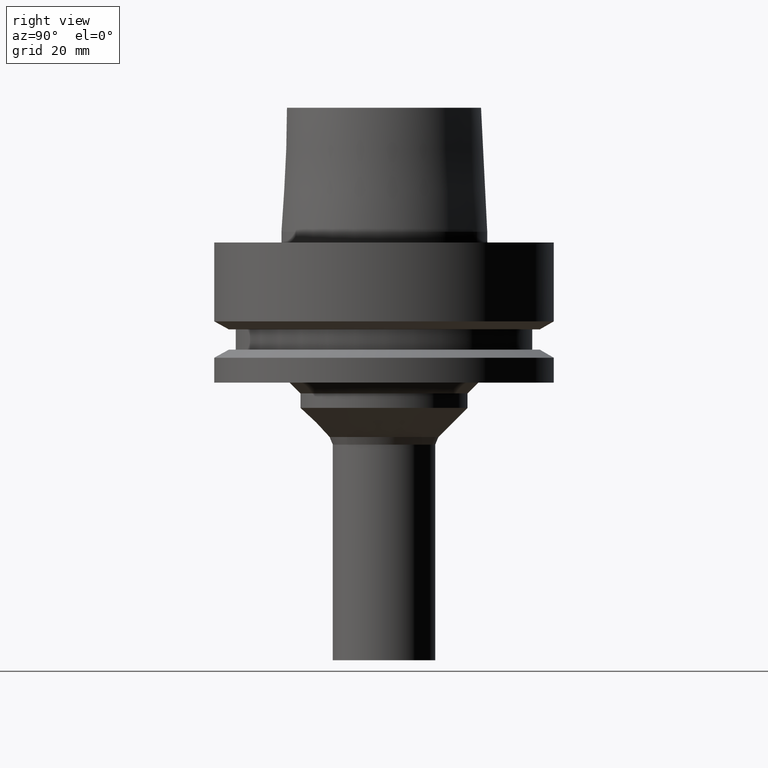
[diagram: clean part render]
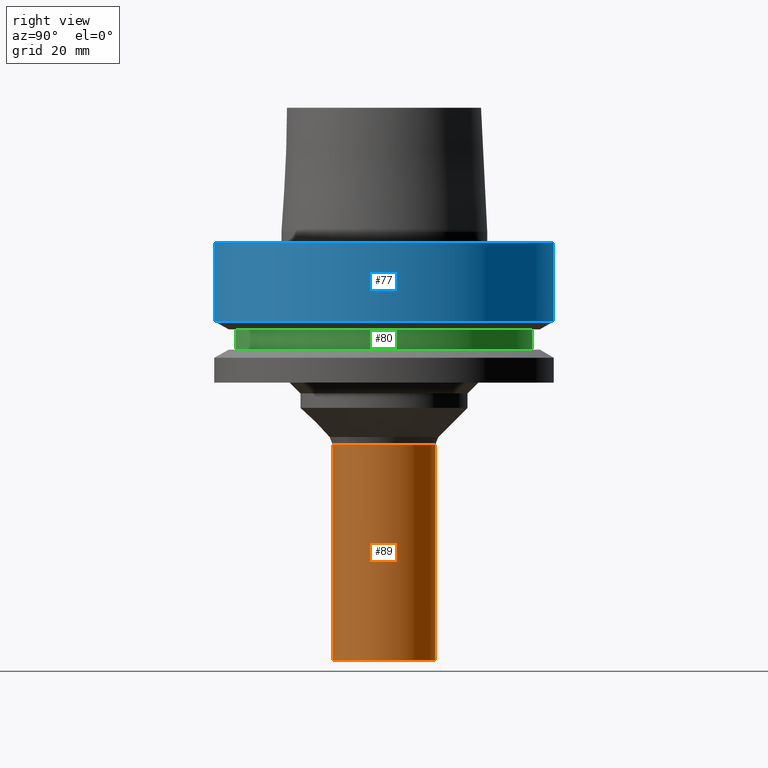
[diagram: same view with three faces highlighted in distinct colors, each labeled with its STEP entity id]
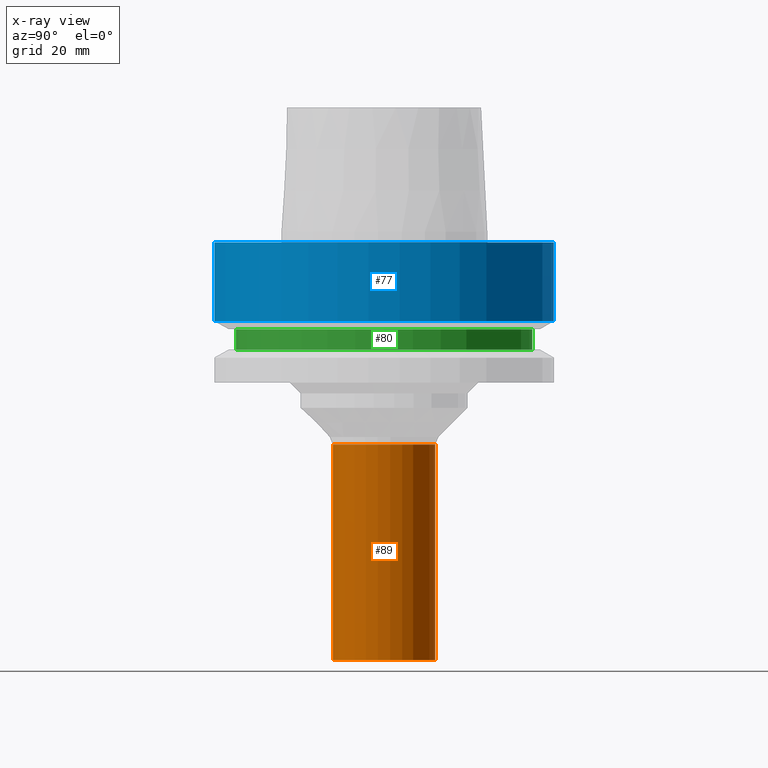
[diagram: x-ray of the same camera — body ghosted, the three highlighted faces saturated]
A machine part, right view with three faces highlighted in distinct colors.
The next image is the same camera in x-ray (body ghosted, the three faces saturated) — at least one of them is partly hidden behind the body in this view.
Their STEP definitions:

[orange] entity #89 — the highlighted cylindrical surface (bore or boss wall) has radius 9.5 mm, axis along (-0, -0, 1).
#89=ADVANCED_FACE('',(#136,#137),#138,.T.);
#136=FACE_BOUND('',#188,.T.);
#137=FACE_BOUND('',#189,.T.);
#138=CYLINDRICAL_SURFACE('',#190,9.5);
#188=EDGE_LOOP('',(#268));
#189=EDGE_LOOP('',(#269));
#190=AXIS2_PLACEMENT_3D('',#270,#271,#272);
#268=ORIENTED_EDGE('',*,*,#301,.F.);
#269=ORIENTED_EDGE('',*,*,#300,.T.);
#270=CARTESIAN_POINT('',(3.52085954754864E-015,7.04171909509728E-015,-57.5));
#271=DIRECTION('',(-6.12323399573677E-017,-1.22464679914735E-016,1.0));
#272=DIRECTION('',(-1.23259516440783E-032,1.0,1.22464679914735E-016));
#300=EDGE_CURVE('',#331,#331,#332,.T.);
#301=EDGE_CURVE('',#333,#333,#334,.T.);
#331=VERTEX_POINT('',#365);
#332=CIRCLE('',#366,9.5);
#333=VERTEX_POINT('',#367);
#334=CIRCLE('',#368,9.5);
#365=CARTESIAN_POINT('',(2.29621274840128E-015,9.50000000000001,-37.5));
#366=AXIS2_PLACEMENT_3D('',#413,#414,#415);
#367=CARTESIAN_POINT('',(4.74550634669599E-015,9.50000000000001,-77.5));
#368=AXIS2_PLACEMENT_3D('',#416,#417,#418);
#413=CARTESIAN_POINT('',(2.29621274840128E-015,4.59242549680257E-015,-37.5));
#414=DIRECTION('',(6.12323399573677E-017,1.22464679914735E-016,-1.0));
#415=DIRECTION('',(-1.23259516440783E-032,1.0,1.22464679914735E-016));
#416=CARTESIAN_POINT('',(4.74550634669599E-015,9.49101269339199E-015,-77.5));
#417=DIRECTION('',(6.12323399573677E-017,1.22464679914735E-016,-1.0));
#418=DIRECTION('',(-1.23259516440783E-032,1.0,1.22464679914735E-016));

[blue] entity #77 — the highlighted cylindrical surface (bore or boss wall) has radius 31.5 mm, axis along (-0, -0, 1).
#77=ADVANCED_FACE('',(#100,#101),#102,.T.);
#100=FACE_BOUND('',#152,.T.);
#101=FACE_BOUND('',#153,.T.);
#102=CYLINDRICAL_SURFACE('',#154,31.5);
#152=EDGE_LOOP('',(#208));
#153=EDGE_LOOP('',(#209));
#154=AXIS2_PLACEMENT_3D('',#210,#211,#212);
#208=ORIENTED_EDGE('',*,*,#289,.F.);
#209=ORIENTED_EDGE('',*,*,#288,.T.);
#210=CARTESIAN_POINT('',(4.47684973986342E-016,8.95369947972684E-016,-7.311250465));
#211=DIRECTION('',(-6.12323399573677E-017,-1.22464679914735E-016,1.0));
#212=DIRECTION('',(-1.23259516440783E-032,1.0,1.22464679914735E-016));
#288=EDGE_CURVE('',#307,#307,#308,.T.);
#289=EDGE_CURVE('',#309,#309,#310,.T.);
#307=VERTEX_POINT('',#341);
#308=CIRCLE('',#342,31.5);
#309=VERTEX_POINT('',#343);
#310=CIRCLE('',#344,31.5);
#341=CARTESIAN_POINT('',(-3.8214424279273E-031,31.5,3.75763741731416E-015));
#342=AXIS2_PLACEMENT_3D('',#377,#378,#379);
#343=CARTESIAN_POINT('',(8.95369947972684E-016,31.5,-14.62250093));
#344=AXIS2_PLACEMENT_3D('',#380,#381,#382);
#377=CARTESIAN_POINT('',(0.0,0.0,0.0));
#378=DIRECTION('',(6.12323399573677E-017,1.22464679914735E-016,-1.0));
#379=DIRECTION('',(-1.23259516440783E-032,1.0,1.22464679914735E-016));
#380=CARTESIAN_POINT('',(8.95369947972685E-016,1.79073989594537E-015,-14.62250093));
#381=DIRECTION('',(6.12323399573677E-017,1.22464679914735E-016,-1.0));
#382=DIRECTION('',(-1.23259516440783E-032,1.0,1.22464679914735E-016));

[green] entity #80 — the highlighted cylindrical surface (bore or boss wall) has radius 27.5 mm, axis along (-0, -0, 1).
#80=ADVANCED_FACE('',(#109,#110),#111,.T.);
#109=FACE_BOUND('',#161,.T.);
#110=FACE_BOUND('',#162,.T.);
#111=CYLINDRICAL_SURFACE('',#163,27.5);
#161=EDGE_LOOP('',(#223));
#162=EDGE_LOOP('',(#224));
#163=AXIS2_PLACEMENT_3D('',#225,#226,#227);
#223=ORIENTED_EDGE('',*,*,#292,.F.);
#224=ORIENTED_EDGE('',*,*,#291,.T.);
#225=CARTESIAN_POINT('',(1.10218211923262E-015,2.20436423846524E-015,-18.0));
#226=DIRECTION('',(-6.12323399573677E-017,-1.22464679914735E-016,1.0));
#227=DIRECTION('',(-1.23259516440783E-032,1.0,1.22464679914735E-016));
#291=EDGE_CURVE('',#313,#313,#314,.T.);
#292=EDGE_CURVE('',#315,#315,#316,.T.);
#313=VERTEX_POINT('',#347);
#314=CIRCLE('',#348,27.5);
#315=VERTEX_POINT('',#349);
#316=CIRCLE('',#350,27.5);
#347=CARTESIAN_POINT('',(9.87371481812553E-016,27.5,-16.125));
#348=AXIS2_PLACEMENT_3D('',#386,#387,#388);
#349=CARTESIAN_POINT('',(1.21699275665268E-015,27.5,-19.875));
#350=AXIS2_PLACEMENT_3D('',#389,#390,#391);
#386=CARTESIAN_POINT('',(9.87371481812553E-016,1.97474296362511E-015,-16.125));
#387=DIRECTION('',(6.12323399573677E-017,1.22464679914735E-016,-1.0));
#388=DIRECTION('',(-1.23259516440783E-032,1.0,1.22464679914735E-016));
#389=CARTESIAN_POINT('',(1.21699275665268E-015,2.43398551330536E-015,-19.875));
#390=DIRECTION('',(6.12323399573677E-017,1.22464679914735E-016,-1.0));
#391=DIRECTION('',(-1.23259516440783E-032,1.0,1.22464679914735E-016));